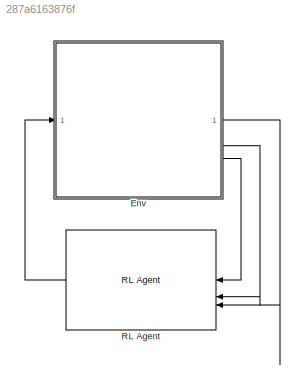
MODEL slx_287a6163876f
KIND model
CONFIG AbsTol = auto
CONFIG EnableMultiTasking = off
CONFIG FixedStep = auto
CONFIG MaxStep = auto
CONFIG MinStep = auto
CONFIG RelTol = 1e-3
CONFIG SampleTimeConstraint = Unconstrained
CONFIG SolverName = VariableStepAuto
CONFIG StartTime = 0.0
CONFIG StopTime = 10.0
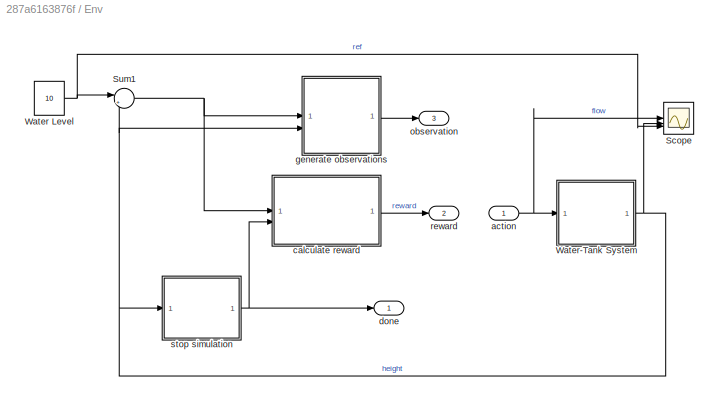
BLOCK [SubSystem] Env
BLOCK [Scope] Env/Scope
  Floating = off
  NumInputPorts = 3
  ScopeSpecificationString = Simulink.scopes.TimeScopeBlockCfg('CurrentConfiguration', extmgr.ConfigurationSet(extmgr.Configuration('Core','General UI',true),extmgr.Configuration('Core','Source UI',true),extmgr.Configuration('Sources','WiredSimulink',true),extmgr.Configuration('Visuals','Time Domain',true,'SerializedDisplays',{struct('MinYLimReal','-37.19697','MaxYLimReal','34.77273','YLabelReal','','MinYLimMag','0.00000','Ma...<+2601ch>
BLOCK [Sum] Env/Sum1
  Inputs = |+-
  SaturateOnIntegerOverflow = on
BLOCK [Constant] Env/Water Level
  Value = 10
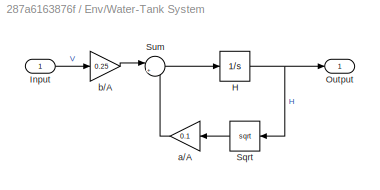
BLOCK [SubSystem] Env/Water-Tank System
BLOCK [Integrator] Env/Water-Tank System/H
  InitialCondition = 3
  LimitOutput = on
  LowerSaturationLimit = 0
BLOCK [Inport] Env/Water-Tank System/Input
BLOCK [Outport] Env/Water-Tank System/Output
  VectorParamsAs1DForOutWhenUnconnected = off
BLOCK [Sqrt] Env/Water-Tank System/Sqrt
  NameLocation = top
  OutputSignalType = real
BLOCK [Sum] Env/Water-Tank System/Sum
  Inputs = |+-
  SaturateOnIntegerOverflow = on
BLOCK [Gain] Env/Water-Tank System/a//A
  Gain = 0.1
  OutDataTypeStr = Inherit: Same as input
  ParamDataTypeStr = Inherit: Same as input
  SaturateOnIntegerOverflow = on
BLOCK [Gain] Env/Water-Tank System/b//A
  Gain = 0.25
  OutDataTypeStr = Inherit: Same as input
  ParamDataTypeStr = Inherit: Same as input
  SaturateOnIntegerOverflow = on
BLOCK [Inport] Env/action
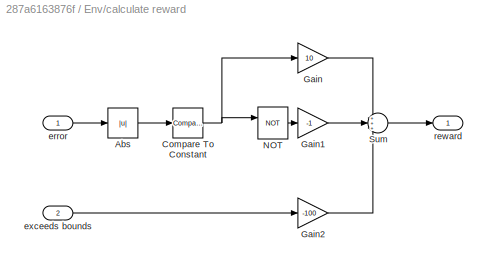
BLOCK [SubSystem] Env/calculate reward
BLOCK [Abs] Env/calculate reward/Abs
  SaturateOnIntegerOverflow = off
BLOCK [Reference] Env/calculate reward/Compare To Constant  REF=simulink/Logic and Bit
Operations/Compare
To Constant
  SourceBlock = simulink/Logic and Bit\nOperations/Compare\nTo Constant
  SourceType = Compare To Constant
BLOCK [Gain] Env/calculate reward/Gain
  Gain = 10
BLOCK [Gain] Env/calculate reward/Gain1
  Gain = -1
BLOCK [Gain] Env/calculate reward/Gain2
  Gain = -100
BLOCK [Logic] Env/calculate reward/NOT
  AllPortsSameDT = off
  IconShape = distinctive
  Operator = NOT
  OutDataTypeStr = boolean
BLOCK [Sum] Env/calculate reward/Sum
  Inputs = +++
  OutDataTypeStr = double
BLOCK [Inport] Env/calculate reward/error
BLOCK [Inport] Env/calculate reward/exceeds bounds
  Port = 2
BLOCK [Outport] Env/calculate reward/reward
  VectorParamsAs1DForOutWhenUnconnected = off
BLOCK [Outport] Env/done
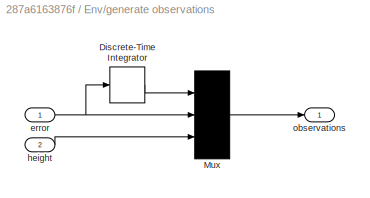
BLOCK [SubSystem] Env/generate observations
BLOCK [DiscreteIntegrator] Env/generate observations/Discrete-Time Integrator
  ICPrevOutput = DiscIntNeverNeededParam
  ICPrevScaledInput = DiscIntNeverNeededParam
  InitialConditionSetting = Auto
  SampleTime = 1.0
BLOCK [Mux] Env/generate observations/Mux
  DisplayOption = bar
  Inputs = 3
BLOCK [Inport] Env/generate observations/error
BLOCK [Inport] Env/generate observations/height
  Port = 2
BLOCK [Outport] Env/generate observations/observations
  VectorParamsAs1DForOutWhenUnconnected = off
BLOCK [Outport] Env/observation
  Port = 3
BLOCK [Outport] Env/reward
  Port = 2
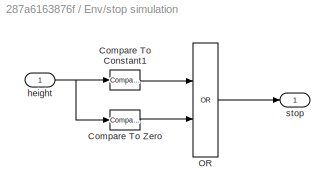
BLOCK [SubSystem] Env/stop simulation
BLOCK [Reference] Env/stop simulation/Compare To Constant1  REF=simulink/Logic and Bit
Operations/Compare
To Constant
  SourceBlock = simulink/Logic and Bit\nOperations/Compare\nTo Constant
  SourceType = Compare To Constant
BLOCK [Reference] Env/stop simulation/Compare To Zero  REF=simulink/Logic and Bit
Operations/Compare
To Zero
  SourceBlock = simulink/Logic and Bit\nOperations/Compare\nTo Zero
  SourceType = Compare To Zero
BLOCK [Logic] Env/stop simulation/OR
  AllPortsSameDT = off
  IconShape = distinctive
  Operator = OR
  OutDataTypeStr = boolean
BLOCK [Inport] Env/stop simulation/height
BLOCK [Outport] Env/stop simulation/stop
  VectorParamsAs1DForOutWhenUnconnected = off
BLOCK [Reference] RL Agent  REF=rllib/RL Agent
  NameLocation = top
  SourceBlock = rllib/RL Agent
  SourceType = RL Agent
NET Env/Sum1:1 -> Env/calculate reward:1, Env/generate observations:1
NET Env/Water Level:1 -> Env/Scope:3, Env/Sum1:1
NET Env/Water-Tank System/H:1 -> Env/Water-Tank System/Output:1, Env/Water-Tank System/Sqrt:1
LINE Env/Water-Tank System/Input:1 -> Env/Water-Tank System/b//A:1
LINE Env/Water-Tank System/Sqrt:1 -> Env/Water-Tank System/a//A:1
LINE Env/Water-Tank System/Sum:1 -> Env/Water-Tank System/H:1
LINE Env/Water-Tank System/a//A:1 -> Env/Water-Tank System/Sum:2
LINE Env/Water-Tank System/b//A:1 -> Env/Water-Tank System/Sum:1
NET Env/Water-Tank System:1 -> Env/Scope:2, Env/Sum1:2, Env/generate observations:2, Env/stop simulation:1
NET Env/action:1 -> Env/Scope:1, Env/Water-Tank System:1
LINE Env/calculate reward/Abs:1 -> Env/calculate reward/Compare To Constant:1
NET Env/calculate reward/Compare To Constant:1 -> Env/calculate reward/Gain:1, Env/calculate reward/NOT:1
LINE Env/calculate reward/Gain1:1 -> Env/calculate reward/Sum:2
LINE Env/calculate reward/Gain2:1 -> Env/calculate reward/Sum:3
LINE Env/calculate reward/Gain:1 -> Env/calculate reward/Sum:1
LINE Env/calculate reward/NOT:1 -> Env/calculate reward/Gain1:1
LINE Env/calculate reward/Sum:1 -> Env/calculate reward/reward:1
LINE Env/calculate reward/error:1 -> Env/calculate reward/Abs:1
LINE Env/calculate reward/exceeds bounds:1 -> Env/calculate reward/Gain2:1
LINE Env/calculate reward:1 -> Env/reward:1
LINE Env/generate observations/Discrete-Time Integrator:1 -> Env/generate observations/Mux:1
LINE Env/generate observations/Mux:1 -> Env/generate observations/observations:1
NET Env/generate observations/error:1 -> Env/generate observations/Discrete-Time Integrator:1, Env/generate observations/Mux:2
LINE Env/generate observations/height:1 -> Env/generate observations/Mux:3
LINE Env/generate observations:1 -> Env/observation:1
LINE Env/stop simulation/Compare To Constant1:1 -> Env/stop simulation/OR:1
LINE Env/stop simulation/Compare To Zero:1 -> Env/stop simulation/OR:2
LINE Env/stop simulation/OR:1 -> Env/stop simulation/stop:1
NET Env/stop simulation/height:1 -> Env/stop simulation/Compare To Constant1:1, Env/stop simulation/Compare To Zero:1
NET Env/stop simulation:1 -> Env/calculate reward:2, Env/done:1
LINE Env:1 -> RL Agent:3
LINE Env:2 -> RL Agent:2
LINE Env:3 -> RL Agent:1
LINE RL Agent:1 -> Env:1
note: NET lines group one-source signal fan-out (src -> all destinations, sorted); 1:1 wires keep LINE
